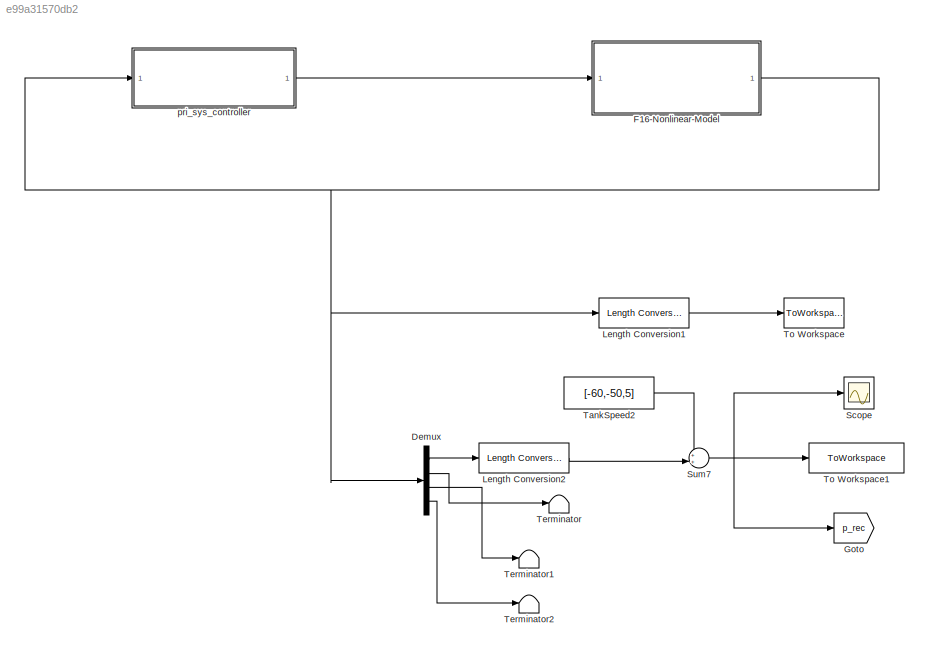
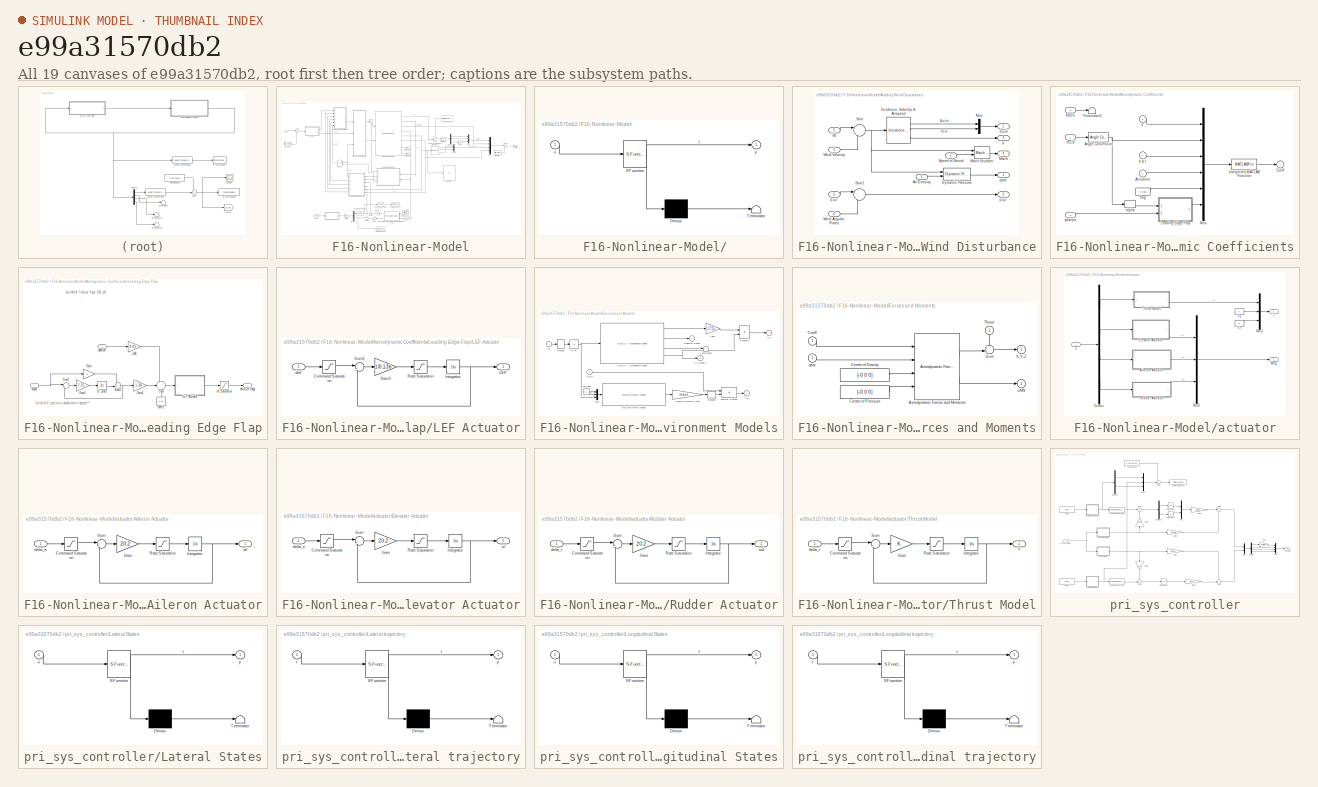
[diagram: thumbnail index - all 19 canvases of the model, root first then tree order]
MODEL slx_e99a31570db2
KIND model
CONFIG AbsTol = auto
CONFIG EnableMultiTasking = off
CONFIG FixedStep = 0.01
CONFIG MaxStep = auto
CONFIG MinStep = auto
CONFIG RelTol = 1e-3
CONFIG SampleTimeConstraint = Unconstrained
CONFIG Solver = VariableStepAuto
CONFIG SolverName = VariableStepAuto
CONFIG StartTime = 0.0
CONFIG StopTime = 200
BLOCK [Demux] Demux
  DisplayOption = bar
  Ports = [1, 4]
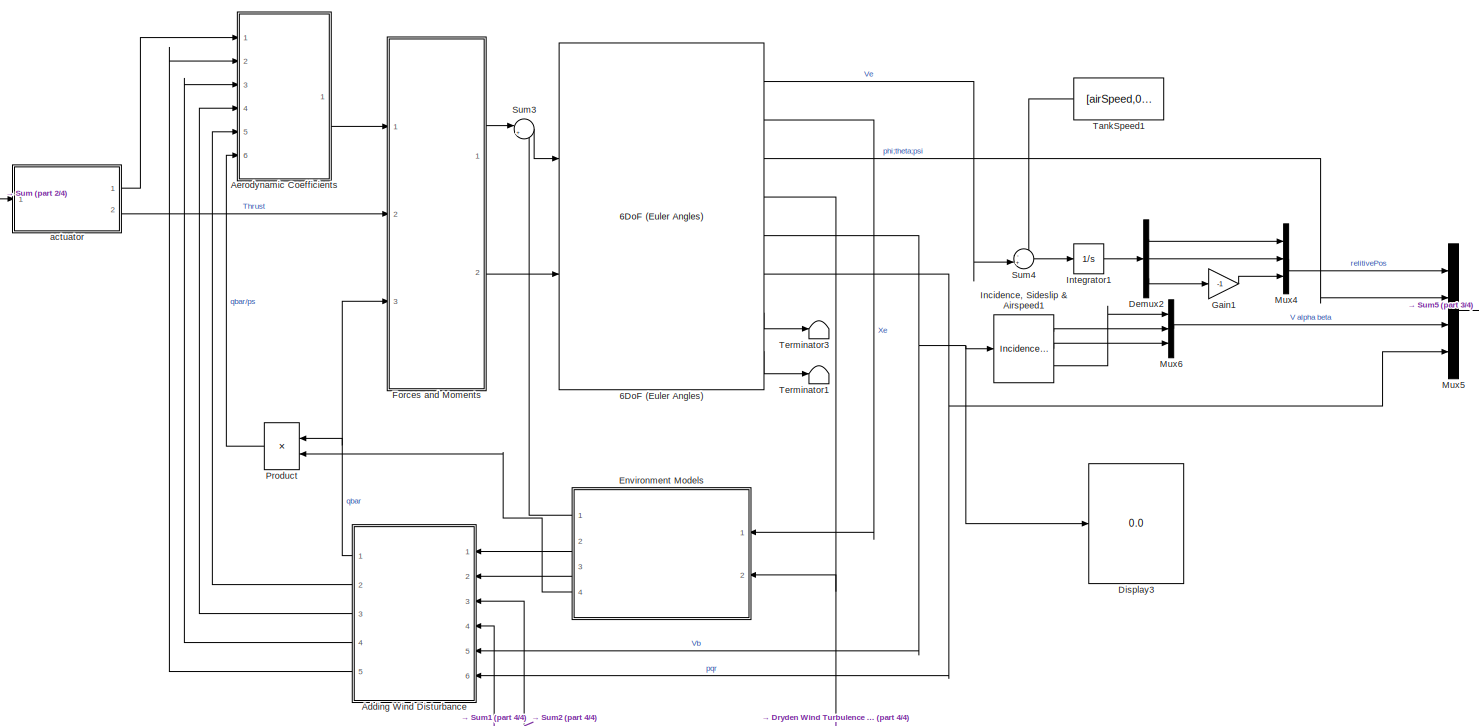
[diagram: F16-Nonlinear-Model - part 1/4, full width, middle band]
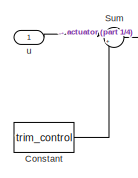
[diagram: F16-Nonlinear-Model - part 2/4, top left region]
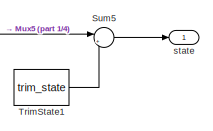
[diagram: F16-Nonlinear-Model - part 3/4, middle right region]
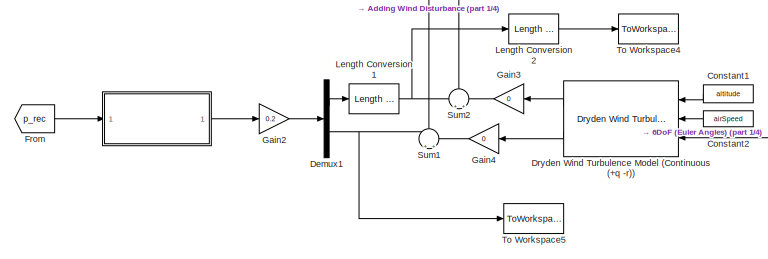
[diagram: F16-Nonlinear-Model - part 4/4, bottom center region]
BLOCK [SubSystem] F16-Nonlinear-Model
  Ports = [1, 1]
  RequestExecContextInheritance = off
  Variant = off
BLOCK [SubSystem] F16-Nonlinear-Model/ 
  ErrorFcn = Stateflow.Translate.translate
  PermitHierarchicalResolution = ExplicitOnly
  Ports = [1, 1]
  RequestExecContextInheritance = off
  SFBlockType = MATLAB Function
  TreatAsAtomicUnit = on
  Variant = off
BLOCK [Demux] F16-Nonlinear-Model/ / Demux 
  Outputs = 1
  Ports = [1, 1]
BLOCK [S-Function] F16-Nonlinear-Model/ / SFunction 
  EnableBusSupport = on
  FunctionName = sf_sfun
  PortCounts = [1 2]
  Ports = [1, 2]
  SFcnIsStateOwnerBlock = off
  SFunctionDeploymentMode = off
  Tag = Stateflow S-Function ADC_Controller_Trajectory_Tracking__Vortex_COM 3
BLOCK [Terminator] F16-Nonlinear-Model/ / Terminator 
BLOCK [Inport] F16-Nonlinear-Model/ /u
  IconDisplay = Port number
BLOCK [Outport] F16-Nonlinear-Model/ /y
  IconDisplay = Port number
BLOCK [Reference] F16-Nonlinear-Model/6DoF (Euler Angles)  REF=aerolibobsolete/6DoF (Euler Angles)
  Ports = [2, 8]
  SourceBlock = aerolibobsolete/6DoF (Euler Angles)
  SourceProductBaseCode = AE
  SourceProductName = Aerospace Blockset
  SourceType = 6DoF EoM (Body Axis)
BLOCK [SubSystem] F16-Nonlinear-Model/Adding Wind Disturbance
  Ports = [6, 5]
  RequestExecContextInheritance = off
  Variant = off
BLOCK [Inport] F16-Nonlinear-Model/Adding Wind Disturbance/Air Density
  IconDisplay = Port number
  Port = 2
BLOCK [Reference] F16-Nonlinear-Model/Adding Wind Disturbance/Dynamic Pressure  REF=aerolibasang/Dynamic Pressure
  Ports = [2, 1]
  SourceBlock = aerolibasang/Dynamic Pressure
  SourceProductBaseCode = AE
  SourceProductName = Aerospace Blockset
  SourceType = Dynamic Pressure
BLOCK [Outport] F16-Nonlinear-Model/Adding Wind Disturbance/Incid
  IconDisplay = Port number
  Port = 5
BLOCK [Reference] F16-Nonlinear-Model/Adding Wind Disturbance/Incidence, Sideslip & Airspeed  REF=aerolibasang/Incidence, Sideslip,
& Airspeed
  Ports = [1, 3]
  SourceBlock = aerolibasang/Incidence, Sideslip,\n& Airspeed
  SourceProductBaseCode = AE
  SourceProductName = Aerospace Blockset
  SourceType = Incidence,Sideslip,&Airspeed
BLOCK [Outport] F16-Nonlinear-Model/Adding Wind Disturbance/Mach
  IconDisplay = Port number
  Port = 4
BLOCK [Reference] F16-Nonlinear-Model/Adding Wind Disturbance/Mach Number  REF=aerolibasang/Mach Number
  Ports = [2, 1]
  SourceBlock = aerolibasang/Mach Number
  SourceProductBaseCode = AE
  SourceProductName = Aerospace Blockset
  SourceType = Mach Number
BLOCK [Mux] F16-Nonlinear-Model/Adding Wind Disturbance/Mux
  DisplayOption = bar
  Inputs = 2
  Ports = [2, 1]
BLOCK [Inport] F16-Nonlinear-Model/Adding Wind Disturbance/Speed of Sound
  IconDisplay = Port number
BLOCK [Sum] F16-Nonlinear-Model/Adding Wind Disturbance/Sum
  IconShape = round
  Inputs = |+-
  Ports = [2, 1]
BLOCK [Sum] F16-Nonlinear-Model/Adding Wind Disturbance/Sum1
  IconShape = round
  Inputs = |++
  Ports = [2, 1]
BLOCK [Outport] F16-Nonlinear-Model/Adding Wind Disturbance/V
  IconDisplay = Port number
  Port = 3
BLOCK [Inport] F16-Nonlinear-Model/Adding Wind Disturbance/Vb
  IconDisplay = Port number
  Port = 5
  PortDimensions = 3
BLOCK [Inport] F16-Nonlinear-Model/Adding Wind Disturbance/Wind Angular Rates
  IconDisplay = Port number
  Port = 4
  PortDimensions = 3
BLOCK [Inport] F16-Nonlinear-Model/Adding Wind Disturbance/Wind Velocity
  IconDisplay = Port number
  Port = 3
  PortDimensions = 3
BLOCK [Inport] F16-Nonlinear-Model/Adding Wind Disturbance/p,q,r
  IconDisplay = Port number
  Port = 6
  PortDimensions = 3
BLOCK [Outport] F16-Nonlinear-Model/Adding Wind Disturbance/p,q,r 
  IconDisplay = Port number
  Port = 2
BLOCK [Outport] F16-Nonlinear-Model/Adding Wind Disturbance/qbar
  IconDisplay = Port number
  InitialOutput = 0
BLOCK [SubSystem] F16-Nonlinear-Model/Aerodynamic Coefficients
  Ports = [6, 1]
  RequestExecContextInheritance = off
  Variant = off
BLOCK [Inport] F16-Nonlinear-Model/Aerodynamic Coefficients/Actuators
  IconDisplay = Port number
BLOCK [Reference] F16-Nonlinear-Model/Aerodynamic Coefficients/Angle Conversion  REF=aerolibconvert2/Angle Conversion
  Ports = [1, 1]
  SourceBlock = aerolibconvert2/Angle Conversion
  SourceProductBaseCode = AE
  SourceProductName = Aerospace Blockset
  SourceType = Angle Conversion
BLOCK [Outport] F16-Nonlinear-Model/Aerodynamic Coefficients/Coeff
  IconDisplay = Port number
  InitialOutput = 0
BLOCK [Inport] F16-Nonlinear-Model/Aerodynamic Coefficients/Incid
  IconDisplay = Port number
  Port = 2
BLOCK [MATLABFcn] F16-Nonlinear-Model/Aerodynamic Coefficients/Interpreted MATLAB Function
  MATLABFcn = F16Coef1
  OutputDimensions = 6
  Ports = [1, 1]
BLOCK [SubSystem] F16-Nonlinear-Model/Aerodynamic Coefficients/Leading Edge Flap
  Ports = [2, 1]
  RequestExecContextInheritance = off
  Variant = off
BLOCK [Gain] F16-Nonlinear-Model/Aerodynamic Coefficients/Leading Edge Flap/Gain
  Gain = 2
BLOCK [Gain] F16-Nonlinear-Model/Aerodynamic Coefficients/Leading Edge Flap/Gain1
  Gain = 7.25
BLOCK [Gain] F16-Nonlinear-Model/Aerodynamic Coefficients/Leading Edge Flap/Gain2
  Gain = 1.38
BLOCK [SubSystem] F16-Nonlinear-Model/Aerodynamic Coefficients/Leading Edge Flap/LEF Actuator
  Ports = [1, 1]
  RequestExecContextInheritance = off
  Variant = off
BLOCK [Saturate] F16-Nonlinear-Model/Aerodynamic Coefficients/Leading Edge Flap/LEF Actuator/Command Saturation
  InputPortMap = u0
  LowerLimit = 0
  Ports = [1, 1]
  UpperLimit = 25
BLOCK [Gain] F16-Nonlinear-Model/Aerodynamic Coefficients/Leading Edge Flap/LEF Actuator/Gain3
  Gain = 1/0.136
BLOCK [Integrator] F16-Nonlinear-Model/Aerodynamic Coefficients/Leading Edge Flap/LEF Actuator/Integrator 
  InitialCondition = dLEF
  LowerSaturationLimit = -21.5
  Ports = [1, 1]
  UpperSaturationLimit = 21.5
BLOCK [Outport] F16-Nonlinear-Model/Aerodynamic Coefficients/Leading Edge Flap/LEF Actuator/LEF
  IconDisplay = Port number
BLOCK [Saturate] F16-Nonlinear-Model/Aerodynamic Coefficients/Leading Edge Flap/LEF Actuator/Rate Saturation
  InputPortMap = u0
  LowerLimit = -25
  Ports = [1, 1]
  UpperLimit = 25
BLOCK [Sum] F16-Nonlinear-Model/Aerodynamic Coefficients/Leading Edge Flap/LEF Actuator/Sum3
  IconShape = round
  Inputs = |+-
  Ports = [2, 1]
BLOCK [Inport] F16-Nonlinear-Model/Aerodynamic Coefficients/Leading Edge Flap/LEF Actuator/dlef
  IconDisplay = Port number
BLOCK [Integrator] F16-Nonlinear-Model/Aerodynamic Coefficients/Leading Edge Flap/LF_state
  InitialCondition = -alpha0
  Ports = [1, 1]
BLOCK [Sum] F16-Nonlinear-Model/Aerodynamic Coefficients/Leading Edge Flap/Sum
  IconShape = round
  Inputs = -|+|+
  Ports = [3, 1]
BLOCK [Sum] F16-Nonlinear-Model/Aerodynamic Coefficients/Leading Edge Flap/Sum1
  IconShape = round
  Inputs = |+-
  Ports = [2, 1]
BLOCK [Sum] F16-Nonlinear-Model/Aerodynamic Coefficients/Leading Edge Flap/Sum2
  IconShape = round
  Inputs = ++|
  Ports = [2, 1]
BLOCK [Inport] F16-Nonlinear-Model/Aerodynamic Coefficients/Leading Edge Flap/alpha
  IconDisplay = Port number
BLOCK [Constant] F16-Nonlinear-Model/Aerodynamic Coefficients/Leading Edge Flap/coeff1
  Value = 1.45
BLOCK [Outport] F16-Nonlinear-Model/Aerodynamic Coefficients/Leading Edge Flap/delta_lef (deg)
  IconDisplay = Port number
BLOCK [Saturate] F16-Nonlinear-Model/Aerodynamic Coefficients/Leading Edge Flap/lef Saturation
  InputPortMap = u0
  LowerLimit = 0
  Ports = [1, 1]
  UpperLimit = 25
BLOCK [Inport] F16-Nonlinear-Model/Aerodynamic Coefficients/Leading Edge Flap/qbar//ps
  IconDisplay = Port number
  Port = 2
BLOCK [Gain] F16-Nonlinear-Model/Aerodynamic Coefficients/Leading Edge Flap/r2d6
  Gain = 9.05
BLOCK [Inport] F16-Nonlinear-Model/Aerodynamic Coefficients/Mach
  IconDisplay = Port number
  Port = 3
BLOCK [Mux] F16-Nonlinear-Model/Aerodynamic Coefficients/Mux
  DisplayOption = bar
  Inputs = 6
  Ports = [6, 1]
BLOCK [Terminator] F16-Nonlinear-Model/Aerodynamic Coefficients/Terminator2
BLOCK [Inport] F16-Nonlinear-Model/Aerodynamic Coefficients/V
  IconDisplay = Port number
  Port = 4
BLOCK [Selector] F16-Nonlinear-Model/Aerodynamic Coefficients/alpha
  IndexOptions = Index vector (dialog)
  Indices = 1
  InputPortWidth = 2
  OutputSizes = 1
  Ports = [1, 1]
BLOCK [Constant] F16-Nonlinear-Model/Aerodynamic Coefficients/flag
  Value = fi_flag
BLOCK [Inport] F16-Nonlinear-Model/Aerodynamic Coefficients/p,q,r
  IconDisplay = Port number
  Port = 5
BLOCK [Inport] F16-Nonlinear-Model/Aerodynamic Coefficients/qbar//ps
  IconDisplay = Port number
  Port = 6
BLOCK [Constant] F16-Nonlinear-Model/Constant
  Value = trim_control
BLOCK [Constant] F16-Nonlinear-Model/Constant1
  Value = altitude
BLOCK [Constant] F16-Nonlinear-Model/Constant2
  Value = airSpeed
BLOCK [Demux] F16-Nonlinear-Model/Demux1
  DisplayOption = bar
  Outputs = 2
  Ports = [1, 2]
BLOCK [Demux] F16-Nonlinear-Model/Demux2
  DisplayOption = bar
  Outputs = 3
  Ports = [1, 3]
BLOCK [Display] F16-Nonlinear-Model/Display3
  Decimation = 1
  Ports = [1]
BLOCK [Reference] F16-Nonlinear-Model/Dryden Wind Turbulence Model (Continuous (+q -r))  REF=aerolibwind2/Dryden Wind Turbulence Model 
(Continuous (+q -r))
  Ports = [3, 2]
  SourceBlock = aerolibwind2/Dryden Wind Turbulence Model \n(Continuous (+q -r))
  SourceProductBaseCode = AE
  SourceProductName = Aerospace Blockset
  SourceType = Wind Turbulence Model
BLOCK [SubSystem] F16-Nonlinear-Model/Environment Models
  Ports = [2, 4]
  RequestExecContextInheritance = off
  Variant = off
BLOCK [Outport] F16-Nonlinear-Model/Environment Models/Air Density
  IconDisplay = Port number
  InitialOutput = 0
  Port = 3
BLOCK [Reference] F16-Nonlinear-Model/Environment Models/COESA Atmosphere Model  REF=aerolibatmos2/COESA Atmosphere Model
  Ports = [1, 4]
  SourceBlock = aerolibatmos2/COESA Atmosphere Model
  SourceProductBaseCode = AE
  SourceProductName = Aerospace Blockset
  SourceType = Atmosphere Model
BLOCK [Inport] F16-Nonlinear-Model/Environment Models/DCM
  IconDisplay = Port number
  Port = 2
BLOCK [Outport] F16-Nonlinear-Model/Environment Models/Fg
  IconDisplay = Port number
  InitialOutput = 0
BLOCK [Gain] F16-Nonlinear-Model/Environment Models/Gravity in Earth Axes
  Gain = mass
BLOCK [Selector] F16-Nonlinear-Model/Environment Models/Height
  IndexOptions = Index vector (dialog)
  Indices = [3]
  InputPortWidth = 3
  OutputSizes = 1
  Ports = [1, 1]
BLOCK [Product] F16-Nonlinear-Model/Environment Models/Inertial to Body
  Multiplication = Matrix(*)
  Ports = [2, 1]
  RndMeth = Floor
BLOCK [Constant] F16-Nonlinear-Model/Environment Models/Latitude
  Value = 0
BLOCK [Mux] F16-Nonlinear-Model/Environment Models/Mux
  DisplayOption = bar
  Inputs = 3
  Ports = [3, 1]
BLOCK [Outport] F16-Nonlinear-Model/Environment Models/PS
  IconDisplay = Port number
  Port = 4
BLOCK [Product] F16-Nonlinear-Model/Environment Models/Product6
  Inputs = **
  Ports = [2, 1]
  RndMeth = Floor
BLOCK [Reshape] F16-Nonlinear-Model/Environment Models/Reshape
  Ports = [1, 1]
BLOCK [Outport] F16-Nonlinear-Model/Environment Models/Speed of Sound
  IconDisplay = Port number
  InitialOutput = 0
  Port = 2
BLOCK [Terminator] F16-Nonlinear-Model/Environment Models/Terminator
BLOCK [Reference] F16-Nonlinear-Model/Environment Models/WGS84 Gravity Model   REF=aerolibobsolete/WGS84 Gravity Model 
  Ports = [1, 1]
  SourceBlock = aerolibobsolete/WGS84 Gravity Model
  SourceProductBaseCode = AE
  SourceProductName = Aerospace Blockset
  SourceType = WGS84 Gravity Model 3D
BLOCK [Inport] F16-Nonlinear-Model/Environment Models/Xe
  IconDisplay = Port number
  PortDimensions = 3
BLOCK [Gain] F16-Nonlinear-Model/Environment Models/r2d5
  Gain = 1715
BLOCK [Abs] F16-Nonlinear-Model/Environment Models/z-->h
BLOCK [SubSystem] F16-Nonlinear-Model/Forces and Moments
  Ports = [3, 2]
  RequestExecContextInheritance = off
  Variant = off
BLOCK [Reference] F16-Nonlinear-Model/Forces and Moments/Aerodynamic Forces and Moments   REF=aerolibadyn/Aerodynamic
Forces and Moments 
  Ports = [4, 2]
  SourceBlock = aerolibadyn/Aerodynamic\nForces and Moments
  SourceProductBaseCode = AE
  SourceProductName = Aerospace Blockset
  SourceType = Aerodynamic Forces and Moments
BLOCK [Constant] F16-Nonlinear-Model/Forces and Moments/Center of Gravity
  Value = [-0 0 0]
BLOCK [Constant] F16-Nonlinear-Model/Forces and Moments/Center of Pressure
  Value = [-0 0 0]
BLOCK [Inport] F16-Nonlinear-Model/Forces and Moments/Coeff
  IconDisplay = Port number
BLOCK [Outport] F16-Nonlinear-Model/Forces and Moments/LMN
  IconDisplay = Port number
  InitialOutput = 0
  Port = 2
BLOCK [Sum] F16-Nonlinear-Model/Forces and Moments/Sum
  IconShape = round
  Inputs = ++|
  Ports = [2, 1]
BLOCK [Inport] F16-Nonlinear-Model/Forces and Moments/Thrust
  IconDisplay = Port number
  Port = 2
BLOCK [Outport] F16-Nonlinear-Model/Forces and Moments/X,Y,Z
  IconDisplay = Port number
  InitialOutput = 0
BLOCK [Inport] F16-Nonlinear-Model/Forces and Moments/qbar
  IconDisplay = Port number
  Port = 3
BLOCK [From] F16-Nonlinear-Model/From
  GotoTag = p_rec
  TagVisibility = global
BLOCK [Gain] F16-Nonlinear-Model/Gain1
  Gain = -1
  OutDataTypeStr = Inherit: Inherit via internal rule
  ParamDataTypeStr = Inherit: Inherit via internal rule
  SaturateOnIntegerOverflow = off
BLOCK [Gain] F16-Nonlinear-Model/Gain2
  Gain = 0.2
  OutDataTypeStr = Inherit: Inherit via internal rule
  ParamDataTypeStr = Inherit: Inherit via internal rule
  SaturateOnIntegerOverflow = off
BLOCK [Gain] F16-Nonlinear-Model/Gain3
  Gain = 0
  OutDataTypeStr = Inherit: Inherit via internal rule
  ParamDataTypeStr = Inherit: Inherit via internal rule
  SaturateOnIntegerOverflow = off
BLOCK [Gain] F16-Nonlinear-Model/Gain4
  Gain = 0
  OutDataTypeStr = Inherit: Inherit via internal rule
  ParamDataTypeStr = Inherit: Inherit via internal rule
  SaturateOnIntegerOverflow = off
BLOCK [Reference] F16-Nonlinear-Model/Incidence, Sideslip & Airspeed1  REF=aerolibasang/Incidence, Sideslip,
& Airspeed
  Ports = [1, 3]
  SourceBlock = aerolibasang/Incidence, Sideslip,\n& Airspeed
  SourceProductBaseCode = AE
  SourceProductName = Aerospace Blockset
  SourceType = Incidence,Sideslip,&Airspeed
BLOCK [Integrator] F16-Nonlinear-Model/Integrator1
  Ports = [1, 1]
BLOCK [Reference] F16-Nonlinear-Model/Length Conversion1  REF=aerolibconvert2/Length Conversion
  Ports = [1, 1]
  SourceBlock = aerolibconvert2/Length Conversion
  SourceProductBaseCode = AE
  SourceProductName = Aerospace Blockset
  SourceType = Length Conversion
BLOCK [Reference] F16-Nonlinear-Model/Length Conversion2  REF=aerolibconvert2/Length Conversion
  Ports = [1, 1]
  SourceBlock = aerolibconvert2/Length Conversion
  SourceProductBaseCode = AE
  SourceProductName = Aerospace Blockset
  SourceType = Length Conversion
BLOCK [Mux] F16-Nonlinear-Model/Mux4
  DisplayOption = bar
  Inputs = 3
  Ports = [3, 1]
BLOCK [Mux] F16-Nonlinear-Model/Mux5
  DisplayOption = bar
  Ports = [4, 1]
BLOCK [Mux] F16-Nonlinear-Model/Mux6
  DisplayOption = bar
  Inputs = 3
  Ports = [3, 1]
BLOCK [Product] F16-Nonlinear-Model/Product
  Inputs = */
  Ports = [2, 1]
  RndMeth = Floor
BLOCK [Sum] F16-Nonlinear-Model/Sum
  IconShape = round
  InputSameDT = off
  Inputs = |++
  OutDataTypeStr = Inherit: Inherit via internal rule
  Ports = [2, 1]
  SaturateOnIntegerOverflow = off
BLOCK [Sum] F16-Nonlinear-Model/Sum1
  IconShape = round
  InputSameDT = off
  Inputs = +|+
  OutDataTypeStr = Inherit: Inherit via internal rule
  Ports = [2, 1]
  SaturateOnIntegerOverflow = off
BLOCK [Sum] F16-Nonlinear-Model/Sum2
  IconShape = round
  InputSameDT = off
  Inputs = +|+
  OutDataTypeStr = Inherit: Inherit via internal rule
  Ports = [2, 1]
  SaturateOnIntegerOverflow = off
BLOCK [Sum] F16-Nonlinear-Model/Sum3
  IconShape = round
  Inputs = |++
  Ports = [2, 1]
BLOCK [Sum] F16-Nonlinear-Model/Sum4
  IconShape = round
  InputSameDT = off
  Inputs = -+|
  OutDataTypeStr = Inherit: Inherit via internal rule
  Ports = [2, 1]
  SaturateOnIntegerOverflow = off
BLOCK [Sum] F16-Nonlinear-Model/Sum5
  IconShape = round
  InputSameDT = off
  Inputs = |+-
  OutDataTypeStr = Inherit: Inherit via internal rule
  Ports = [2, 1]
  SaturateOnIntegerOverflow = off
BLOCK [Constant] F16-Nonlinear-Model/TankSpeed1
  Value = [airSpeed,0,0]
BLOCK [Terminator] F16-Nonlinear-Model/Terminator1
BLOCK [Terminator] F16-Nonlinear-Model/Terminator3
BLOCK [ToWorkspace] F16-Nonlinear-Model/To Workspace4
  FixptAsFi = on
  MaxDataPoints = inf
  Ports = [1]
  SampleTime = -1
  Save2DSignal = 3-D array (concatenate along third dimension)
  SaveFormat = Structure With Time
  VariableName = V_wind
BLOCK [ToWorkspace] F16-Nonlinear-Model/To Workspace5
  FixptAsFi = on
  MaxDataPoints = inf
  Ports = [1]
  SampleTime = -1
  Save2DSignal = 3-D array (concatenate along third dimension)
  SaveFormat = Structure With Time
  VariableName = W_wind
BLOCK [Constant] F16-Nonlinear-Model/TrimState1
  Value = trim_state
BLOCK [SubSystem] F16-Nonlinear-Model/actuator
  Ports = [1, 2]
  RequestExecContextInheritance = off
  Variant = off
BLOCK [SubSystem] F16-Nonlinear-Model/actuator/Aileron Actuator
  Ports = [1, 1]
  RequestExecContextInheritance = off
  Variant = off
BLOCK [Saturate] F16-Nonlinear-Model/actuator/Aileron Actuator/Command Saturation
  InputPortMap = u0
  LowerLimit = -21.5
  Ports = [1, 1]
  UpperLimit = 21.5
BLOCK [Gain] F16-Nonlinear-Model/actuator/Aileron Actuator/Gain
  Gain = 20.2
BLOCK [Integrator] F16-Nonlinear-Model/actuator/Aileron Actuator/Integrator 
  InitialCondition = trim_ail
  LowerSaturationLimit = -21.5
  Ports = [1, 1]
  UpperSaturationLimit = 21.5
BLOCK [Saturate] F16-Nonlinear-Model/actuator/Aileron Actuator/Rate Saturation
  InputPortMap = u0
  LowerLimit = -80
  Ports = [1, 1]
  UpperLimit = 80
BLOCK [Sum] F16-Nonlinear-Model/actuator/Aileron Actuator/Sum
  IconShape = round
  Inputs = |+-
  Ports = [2, 1]
BLOCK [Outport] F16-Nonlinear-Model/actuator/Aileron Actuator/ail
  IconDisplay = Port number
BLOCK [Inport] F16-Nonlinear-Model/actuator/Aileron Actuator/delta_a
  IconDisplay = Port number
BLOCK [Outport] F16-Nonlinear-Model/actuator/Ang
  IconDisplay = Port number
BLOCK [Demux] F16-Nonlinear-Model/actuator/Demux
  DisplayOption = bar
  Ports = [1, 4]
BLOCK [SubSystem] F16-Nonlinear-Model/actuator/Elevator Actuator
  Ports = [1, 1]
  RequestExecContextInheritance = off
  Variant = off
BLOCK [Saturate] F16-Nonlinear-Model/actuator/Elevator Actuator/Command Saturation
  InputPortMap = u0
  LowerLimit = -25
  Ports = [1, 1]
  UpperLimit = 25
BLOCK [Gain] F16-Nonlinear-Model/actuator/Elevator Actuator/Gain
  Gain = 20.2
BLOCK [Integrator] F16-Nonlinear-Model/actuator/Elevator Actuator/Integrator 
  InitialCondition = trim_ele
  LowerSaturationLimit = -25
  Ports = [1, 1]
  UpperSaturationLimit = 25
BLOCK [Saturate] F16-Nonlinear-Model/actuator/Elevator Actuator/Rate Saturation
  InputPortMap = u0
  LowerLimit = -60
  Ports = [1, 1]
  UpperLimit = 60
BLOCK [Sum] F16-Nonlinear-Model/actuator/Elevator Actuator/Sum
  IconShape = round
  Inputs = |+-
  Ports = [2, 1]
BLOCK [Inport] F16-Nonlinear-Model/actuator/Elevator Actuator/delta_e
  IconDisplay = Port number
BLOCK [Outport] F16-Nonlinear-Model/actuator/Elevator Actuator/el
  IconDisplay = Port number
BLOCK [Mux] F16-Nonlinear-Model/actuator/Mux1
  DisplayOption = bar
  Inputs = 3
  Ports = [3, 1]
BLOCK [Mux] F16-Nonlinear-Model/actuator/Mux2
  DisplayOption = bar
  Inputs = 3
  Ports = [3, 1]
BLOCK [SubSystem] F16-Nonlinear-Model/actuator/Rudder Actuator
  Ports = [1, 1]
  RequestExecContextInheritance = off
  Variant = off
BLOCK [Saturate] F16-Nonlinear-Model/actuator/Rudder Actuator/Command Saturation
  InputPortMap = u0
  LowerLimit = -30
  Ports = [1, 1]
  UpperLimit = 30
BLOCK [Gain] F16-Nonlinear-Model/actuator/Rudder Actuator/Gain
  Gain = 20.2
BLOCK [Integrator] F16-Nonlinear-Model/actuator/Rudder Actuator/Integrator 
  InitialCondition = trim_rud
  LowerSaturationLimit = -30
  Ports = [1, 1]
  UpperSaturationLimit = 30
BLOCK [Saturate] F16-Nonlinear-Model/actuator/Rudder Actuator/Rate Saturation
  InputPortMap = u0
  LowerLimit = -120
  Ports = [1, 1]
  UpperLimit = 120
BLOCK [Sum] F16-Nonlinear-Model/actuator/Rudder Actuator/Sum
  IconShape = round
  Inputs = |+-
  Ports = [2, 1]
BLOCK [Inport] F16-Nonlinear-Model/actuator/Rudder Actuator/delta_r
  IconDisplay = Port number
BLOCK [Outport] F16-Nonlinear-Model/actuator/Rudder Actuator/rud
  IconDisplay = Port number
BLOCK [Outport] F16-Nonlinear-Model/actuator/T
  IconDisplay = Port number
  Port = 2
BLOCK [SubSystem] F16-Nonlinear-Model/actuator/Thrust Model
  Ports = [1, 1]
  RequestExecContextInheritance = off
  Variant = off
BLOCK [Saturate] F16-Nonlinear-Model/actuator/Thrust Model/Command Saturation
  InputPortMap = u0
  LowerLimit = 1000
  Ports = [1, 1]
  UpperLimit = 19000
BLOCK [Gain] F16-Nonlinear-Model/actuator/Thrust Model/Gain
BLOCK [Integrator] F16-Nonlinear-Model/actuator/Thrust Model/Integrator 
  InitialCondition = trim_thrust
  LowerSaturationLimit = -30
  Ports = [1, 1]
  UpperSaturationLimit = 30
BLOCK [Saturate] F16-Nonlinear-Model/actuator/Thrust Model/Rate Saturation
  InputPortMap = u0
  LowerLimit = -10000
  Ports = [1, 1]
  UpperLimit = 10000
BLOCK [Sum] F16-Nonlinear-Model/actuator/Thrust Model/Sum
  IconShape = round
  Inputs = |+-
  Ports = [2, 1]
BLOCK [Outport] F16-Nonlinear-Model/actuator/Thrust Model/T
  IconDisplay = Port number
BLOCK [Inport] F16-Nonlinear-Model/actuator/Thrust Model/delta_t
  IconDisplay = Port number
BLOCK [Constant] F16-Nonlinear-Model/actuator/Ty
  Value = 0
BLOCK [Constant] F16-Nonlinear-Model/actuator/Tz
  Value = 0
BLOCK [Inport] F16-Nonlinear-Model/actuator/u
  IconDisplay = Port number
BLOCK [Outport] F16-Nonlinear-Model/state
  IconDisplay = Port number
BLOCK [Inport] F16-Nonlinear-Model/u
  IconDisplay = Port number
BLOCK [Goto] Goto
  GotoTag = p_rec
  TagVisibility = global
BLOCK [Reference] Length Conversion1  REF=aerolibconvert2/Length Conversion
  Ports = [1, 1]
  SourceBlock = aerolibconvert2/Length Conversion
  SourceProductBaseCode = AE
  SourceProductName = Aerospace Blockset
  SourceType = Length Conversion
BLOCK [Reference] Length Conversion2  REF=aerolibconvert2/Length Conversion
  Ports = [1, 1]
  SourceBlock = aerolibconvert2/Length Conversion
  SourceProductBaseCode = AE
  SourceProductName = Aerospace Blockset
  SourceType = Length Conversion
BLOCK [Scope] Scope
  NumInputPorts = 1
  Ports = [1]
  ScopeSpecificationString = Simulink.scopes.TimeScopeBlockCfg('CurrentConfiguration', extmgr.ConfigurationSet(extmgr.Configuration('Core','General UI',true),extmgr.Configuration('Core','Source UI',true),extmgr.Configuration('Sources','WiredSimulink',true),extmgr.Configuration('Visuals','Time Domain',true,'SerializedDisplays',{struct('MinYLimReal','-68.21868','MaxYLimReal','13.62324','YLabelReal','','MinYLimMag','0.00000','Ma...<+1381ch>
BLOCK [Sum] Sum7
  IconShape = round
  InputSameDT = off
  Inputs = ++|
  OutDataTypeStr = Inherit: Inherit via internal rule
  Ports = [2, 1]
  SaturateOnIntegerOverflow = off
BLOCK [Constant] TankSpeed2
  Value = [-60,-50,5]
BLOCK [Terminator] Terminator
BLOCK [Terminator] Terminator1
BLOCK [Terminator] Terminator2
BLOCK [ToWorkspace] To Workspace
  FixptAsFi = on
  MaxDataPoints = inf
  Ports = [1]
  SampleTime = -1
  Save2DSignal = 3-D array (concatenate along third dimension)
  SaveFormat = Structure With Time
  VariableName = in_mass
BLOCK [ToWorkspace] To Workspace1
  FixptAsFi = on
  MaxDataPoints = inf
  Ports = [1]
  SampleTime = -1
  Save2DSignal = 3-D array (concatenate along third dimension)
  SaveFormat = Structure With Time
  VariableName = actual_trajectory
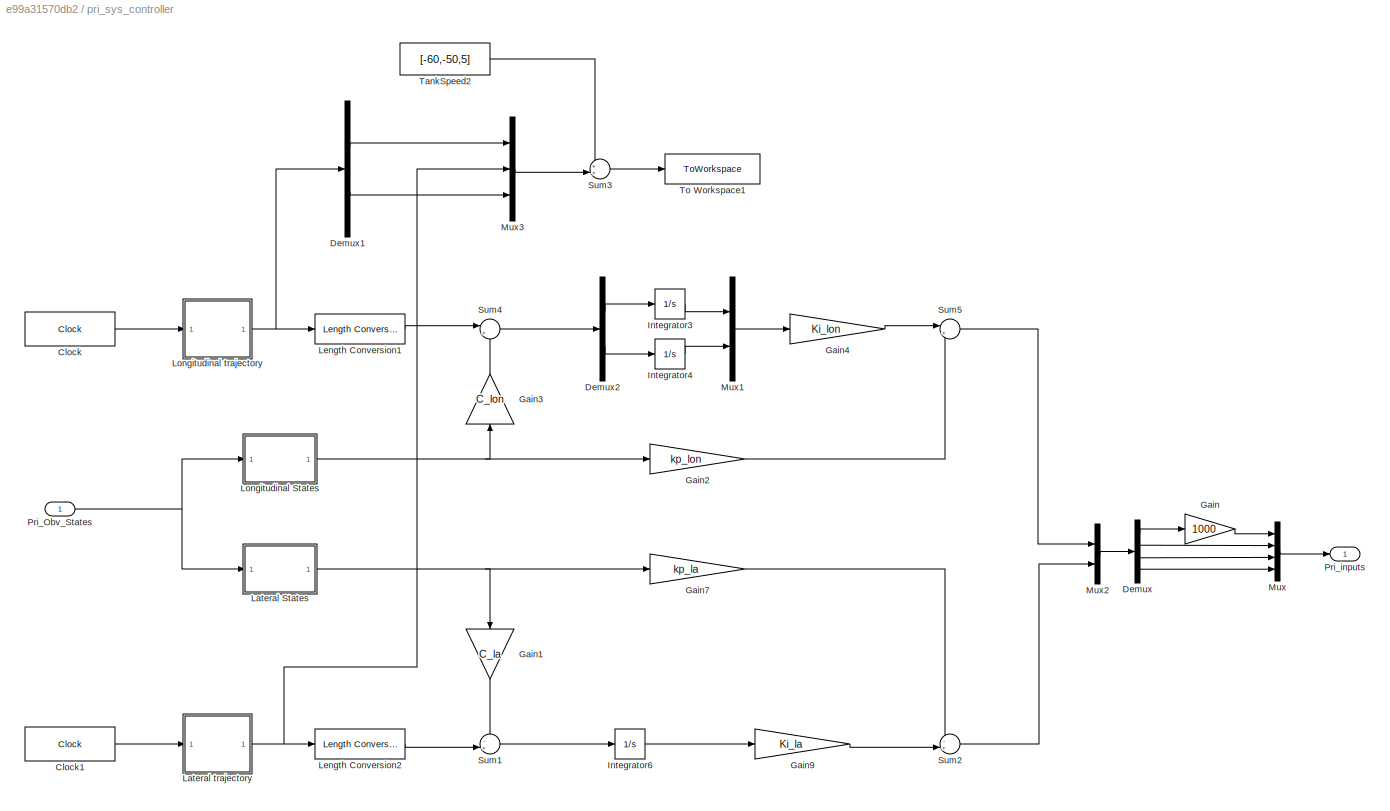
BLOCK [SubSystem] pri_sys_controller
  Ports = [1, 1]
  RequestExecContextInheritance = off
  Variant = off
BLOCK [Clock] pri_sys_controller/Clock
  Decimation = 50
  DisplayTime = on
BLOCK [Clock] pri_sys_controller/Clock1
  Decimation = 50
  DisplayTime = on
BLOCK [Demux] pri_sys_controller/Demux
  DisplayOption = bar
  Ports = [1, 4]
BLOCK [Demux] pri_sys_controller/Demux1
  DisplayOption = bar
  Outputs = 2
  Ports = [1, 2]
BLOCK [Demux] pri_sys_controller/Demux2
  DisplayOption = bar
  Outputs = 2
  Ports = [1, 2]
BLOCK [Gain] pri_sys_controller/Gain
  Gain = 1000
  OutDataTypeStr = Inherit: Inherit via internal rule
  ParamDataTypeStr = Inherit: Inherit via internal rule
  SaturateOnIntegerOverflow = off
BLOCK [Gain] pri_sys_controller/Gain1
  Gain = C_la
  Multiplication = Matrix(K*u) (u vector)
  OutDataTypeStr = Inherit: Inherit via internal rule
  ParamDataTypeStr = Inherit: Inherit via internal rule
  SaturateOnIntegerOverflow = off
BLOCK [Gain] pri_sys_controller/Gain2
  Gain = kp_lon
  Multiplication = Matrix(K*u) (u vector)
  OutDataTypeStr = Inherit: Inherit via internal rule
  ParamDataTypeStr = Inherit: Inherit via internal rule
  SaturateOnIntegerOverflow = off
BLOCK [Gain] pri_sys_controller/Gain3
  Gain = C_lon
  Multiplication = Matrix(K*u) (u vector)
  OutDataTypeStr = Inherit: Inherit via internal rule
  ParamDataTypeStr = Inherit: Inherit via internal rule
  SaturateOnIntegerOverflow = off
BLOCK [Gain] pri_sys_controller/Gain4
  Gain = Ki_lon
  Multiplication = Matrix(K*u) (u vector)
  OutDataTypeStr = Inherit: Inherit via internal rule
  ParamDataTypeStr = Inherit: Inherit via internal rule
  SaturateOnIntegerOverflow = off
BLOCK [Gain] pri_sys_controller/Gain7
  Gain = kp_la
  Multiplication = Matrix(K*u) (u vector)
  OutDataTypeStr = Inherit: Inherit via internal rule
  ParamDataTypeStr = Inherit: Inherit via internal rule
  SaturateOnIntegerOverflow = off
BLOCK [Gain] pri_sys_controller/Gain9
  Gain = Ki_la
  Multiplication = Matrix(K*u) (u vector)
  OutDataTypeStr = Inherit: Inherit via internal rule
  ParamDataTypeStr = Inherit: Inherit via internal rule
  SaturateOnIntegerOverflow = off
BLOCK [Integrator] pri_sys_controller/Integrator3
  Ports = [1, 1]
BLOCK [Integrator] pri_sys_controller/Integrator4
  Ports = [1, 1]
BLOCK [Integrator] pri_sys_controller/Integrator6
  Ports = [1, 1]
BLOCK [SubSystem] pri_sys_controller/Lateral States
  ErrorFcn = Stateflow.Translate.translate
  PermitHierarchicalResolution = ExplicitOnly
  Ports = [1, 1]
  RequestExecContextInheritance = off
  SFBlockType = MATLAB Function
  TreatAsAtomicUnit = on
  Variant = off
BLOCK [Demux] pri_sys_controller/Lateral States/ Demux 
  Outputs = 1
  Ports = [1, 1]
BLOCK [S-Function] pri_sys_controller/Lateral States/ SFunction 
  EnableBusSupport = on
  FunctionName = sf_sfun
  PortCounts = [1 2]
  Ports = [1, 2]
  SFcnIsStateOwnerBlock = off
  SFunctionDeploymentMode = off
  Tag = Stateflow S-Function ADC_Controller_Trajectory_Tracking__Vortex_COM 12
BLOCK [Terminator] pri_sys_controller/Lateral States/ Terminator 
BLOCK [Inport] pri_sys_controller/Lateral States/u
  IconDisplay = Port number
BLOCK [Outport] pri_sys_controller/Lateral States/y
  IconDisplay = Port number
BLOCK [SubSystem] pri_sys_controller/Lateral trajectory
  ErrorFcn = Stateflow.Translate.translate
  PermitHierarchicalResolution = ExplicitOnly
  Ports = [1, 1]
  RequestExecContextInheritance = off
  SFBlockType = MATLAB Function
  TreatAsAtomicUnit = on
  Variant = off
BLOCK [Demux] pri_sys_controller/Lateral trajectory/ Demux 
  Outputs = 1
  Ports = [1, 1]
BLOCK [S-Function] pri_sys_controller/Lateral trajectory/ SFunction 
  EnableBusSupport = on
  FunctionName = sf_sfun
  PortCounts = [1 2]
  Ports = [1, 2]
  SFcnIsStateOwnerBlock = off
  SFunctionDeploymentMode = off
  Tag = Stateflow S-Function ADC_Controller_Trajectory_Tracking__Vortex_COM 8
BLOCK [Terminator] pri_sys_controller/Lateral trajectory/ Terminator 
BLOCK [Inport] pri_sys_controller/Lateral trajectory/t
  IconDisplay = Port number
BLOCK [Outport] pri_sys_controller/Lateral trajectory/y
  IconDisplay = Port number
BLOCK [Reference] pri_sys_controller/Length Conversion1  REF=aerolibconvert2/Length Conversion
  Ports = [1, 1]
  SourceBlock = aerolibconvert2/Length Conversion
  SourceProductBaseCode = AE
  SourceProductName = Aerospace Blockset
  SourceType = Length Conversion
BLOCK [Reference] pri_sys_controller/Length Conversion2  REF=aerolibconvert2/Length Conversion
  Ports = [1, 1]
  SourceBlock = aerolibconvert2/Length Conversion
  SourceProductBaseCode = AE
  SourceProductName = Aerospace Blockset
  SourceType = Length Conversion
BLOCK [SubSystem] pri_sys_controller/Longitudinal States
  ErrorFcn = Stateflow.Translate.translate
  PermitHierarchicalResolution = ExplicitOnly
  Ports = [1, 1]
  RequestExecContextInheritance = off
  SFBlockType = MATLAB Function
  TreatAsAtomicUnit = on
  Variant = off
BLOCK [Demux] pri_sys_controller/Longitudinal States/ Demux 
  Outputs = 1
  Ports = [1, 1]
BLOCK [S-Function] pri_sys_controller/Longitudinal States/ SFunction 
  EnableBusSupport = on
  FunctionName = sf_sfun
  PortCounts = [1 2]
  Ports = [1, 2]
  SFcnIsStateOwnerBlock = off
  SFunctionDeploymentMode = off
  Tag = Stateflow S-Function ADC_Controller_Trajectory_Tracking__Vortex_COM 11
BLOCK [Terminator] pri_sys_controller/Longitudinal States/ Terminator 
BLOCK [Inport] pri_sys_controller/Longitudinal States/u
  IconDisplay = Port number
BLOCK [Outport] pri_sys_controller/Longitudinal States/y
  IconDisplay = Port number
BLOCK [SubSystem] pri_sys_controller/Longitudinal trajectory
  ErrorFcn = Stateflow.Translate.translate
  PermitHierarchicalResolution = ExplicitOnly
  Ports = [1, 1]
  RequestExecContextInheritance = off
  SFBlockType = MATLAB Function
  TreatAsAtomicUnit = on
  Variant = off
BLOCK [Demux] pri_sys_controller/Longitudinal trajectory/ Demux 
  Outputs = 1
  Ports = [1, 1]
BLOCK [S-Function] pri_sys_controller/Longitudinal trajectory/ SFunction 
  EnableBusSupport = on
  FunctionName = sf_sfun
  PortCounts = [1 2]
  Ports = [1, 2]
  SFcnIsStateOwnerBlock = off
  SFunctionDeploymentMode = off
  Tag = Stateflow S-Function ADC_Controller_Trajectory_Tracking__Vortex_COM 1
BLOCK [Terminator] pri_sys_controller/Longitudinal trajectory/ Terminator 
BLOCK [Inport] pri_sys_controller/Longitudinal trajectory/t
  IconDisplay = Port number
BLOCK [Outport] pri_sys_controller/Longitudinal trajectory/y
  IconDisplay = Port number
BLOCK [Mux] pri_sys_controller/Mux
  DisplayOption = bar
  Ports = [4, 1]
BLOCK [Mux] pri_sys_controller/Mux1
  DisplayOption = bar
  Inputs = 2
  Ports = [2, 1]
BLOCK [Mux] pri_sys_controller/Mux2
  DisplayOption = bar
  Inputs = 2
  Ports = [2, 1]
BLOCK [Mux] pri_sys_controller/Mux3
  DisplayOption = bar
  Inputs = 3
  Ports = [3, 1]
BLOCK [Inport] pri_sys_controller/Pri_Obv_States
  IconDisplay = Port number
BLOCK [Outport] pri_sys_controller/Pri_inputs
  IconDisplay = Port number
BLOCK [Sum] pri_sys_controller/Sum1
  IconShape = round
  InputSameDT = off
  Inputs = -+|
  OutDataTypeStr = Inherit: Inherit via internal rule
  Ports = [2, 1]
  SaturateOnIntegerOverflow = off
BLOCK [Sum] pri_sys_controller/Sum2
  IconShape = round
  InputSameDT = off
  Inputs = -+|
  OutDataTypeStr = Inherit: Inherit via internal rule
  Ports = [2, 1]
  SaturateOnIntegerOverflow = off
BLOCK [Sum] pri_sys_controller/Sum3
  IconShape = round
  InputSameDT = off
  Inputs = ++|
  OutDataTypeStr = Inherit: Inherit via internal rule
  Ports = [2, 1]
  SaturateOnIntegerOverflow = off
BLOCK [Sum] pri_sys_controller/Sum4
  IconShape = round
  InputSameDT = off
  Inputs = |+-
  OutDataTypeStr = Inherit: Inherit via internal rule
  Ports = [2, 1]
  SaturateOnIntegerOverflow = off
BLOCK [Sum] pri_sys_controller/Sum5
  IconShape = round
  InputSameDT = off
  Inputs = |+-
  OutDataTypeStr = Inherit: Inherit via internal rule
  Ports = [2, 1]
  SaturateOnIntegerOverflow = off
BLOCK [Constant] pri_sys_controller/TankSpeed2
  Value = [-60,-50,5]
BLOCK [ToWorkspace] pri_sys_controller/To Workspace1
  FixptAsFi = on
  MaxDataPoints = inf
  Ports = [1]
  SampleTime = -1
  Save2DSignal = 3-D array (concatenate along third dimension)
  SaveFormat = Structure With Time
  VariableName = reference_trajectory
ANNOTATION F16-Nonlinear-Model/Aerodynamic Coefficients/Leading Edge Flap: Initialize LF_state with -alpha0 value in degrees!!!!
ANNOTATION F16-Nonlinear-Model/Aerodynamic Coefficients/Leading Edge Flap: see NASA Technical Paper 1538, p34
LINE Demux:1 -> Length Conversion2:1
LINE Demux:2 -> Terminator:1
LINE Demux:3 -> Terminator1:1
LINE Demux:4 -> Terminator2:1
LINE F16-Nonlinear-Model/ :1 -> F16-Nonlinear-Model/Gain2:1
LINE F16-Nonlinear-Model/6DoF (Euler Angles):1 -> F16-Nonlinear-Model/Sum4:2
LINE F16-Nonlinear-Model/6DoF (Euler Angles):2 -> F16-Nonlinear-Model/Environment Models:1
LINE F16-Nonlinear-Model/6DoF (Euler Angles):3 -> F16-Nonlinear-Model/Mux5:2
NET F16-Nonlinear-Model/6DoF (Euler Angles):4 -> F16-Nonlinear-Model/Dryden Wind Turbulence Model (Continuous (+q -r)):3, F16-Nonlinear-Model/Environment Models:2
NET F16-Nonlinear-Model/6DoF (Euler Angles):5 -> F16-Nonlinear-Model/Adding Wind Disturbance:5, F16-Nonlinear-Model/Display3:1, F16-Nonlinear-Model/Incidence, Sideslip & Airspeed1:1
NET F16-Nonlinear-Model/6DoF (Euler Angles):6 -> F16-Nonlinear-Model/Adding Wind Disturbance:6, F16-Nonlinear-Model/Mux5:4
LINE F16-Nonlinear-Model/6DoF (Euler Angles):7 -> F16-Nonlinear-Model/Terminator3:1
LINE F16-Nonlinear-Model/6DoF (Euler Angles):8 -> F16-Nonlinear-Model/Terminator1:1
LINE F16-Nonlinear-Model/Adding Wind Disturbance/Air Density:1 -> F16-Nonlinear-Model/Adding Wind Disturbance/Dynamic Pressure:2
LINE F16-Nonlinear-Model/Adding Wind Disturbance/Dynamic Pressure:1 -> F16-Nonlinear-Model/Adding Wind Disturbance/qbar:1
LINE F16-Nonlinear-Model/Adding Wind Disturbance/Incidence, Sideslip & Airspeed:1 -> F16-Nonlinear-Model/Adding Wind Disturbance/Mux:1
LINE F16-Nonlinear-Model/Adding Wind Disturbance/Incidence, Sideslip & Airspeed:2 -> F16-Nonlinear-Model/Adding Wind Disturbance/Mux:2
LINE F16-Nonlinear-Model/Adding Wind Disturbance/Incidence, Sideslip & Airspeed:3 -> F16-Nonlinear-Model/Adding Wind Disturbance/V:1
LINE F16-Nonlinear-Model/Adding Wind Disturbance/Mach Number:1 -> F16-Nonlinear-Model/Adding Wind Disturbance/Mach:1
LINE F16-Nonlinear-Model/Adding Wind Disturbance/Mux:1 -> F16-Nonlinear-Model/Adding Wind Disturbance/Incid:1
LINE F16-Nonlinear-Model/Adding Wind Disturbance/Speed of Sound:1 -> F16-Nonlinear-Model/Adding Wind Disturbance/Mach Number:2
LINE F16-Nonlinear-Model/Adding Wind Disturbance/Sum1:1 -> F16-Nonlinear-Model/Adding Wind Disturbance/p,q,r :1
NET F16-Nonlinear-Model/Adding Wind Disturbance/Sum:1 -> F16-Nonlinear-Model/Adding Wind Disturbance/Dynamic Pressure:1, F16-Nonlinear-Model/Adding Wind Disturbance/Incidence, Sideslip & Airspeed:1, F16-Nonlinear-Model/Adding Wind Disturbance/Mach Number:1
LINE F16-Nonlinear-Model/Adding Wind Disturbance/Vb:1 -> F16-Nonlinear-Model/Adding Wind Disturbance/Sum:1
LINE F16-Nonlinear-Model/Adding Wind Disturbance/Wind Angular Rates:1 -> F16-Nonlinear-Model/Adding Wind Disturbance/Sum1:2
LINE F16-Nonlinear-Model/Adding Wind Disturbance/Wind Velocity:1 -> F16-Nonlinear-Model/Adding Wind Disturbance/Sum:2
LINE F16-Nonlinear-Model/Adding Wind Disturbance/p,q,r:1 -> F16-Nonlinear-Model/Adding Wind Disturbance/Sum1:1
NET F16-Nonlinear-Model/Adding Wind Disturbance:1 -> F16-Nonlinear-Model/Forces and Moments:3, F16-Nonlinear-Model/Product:1
LINE F16-Nonlinear-Model/Adding Wind Disturbance:2 -> F16-Nonlinear-Model/Aerodynamic Coefficients:5
LINE F16-Nonlinear-Model/Adding Wind Disturbance:3 -> F16-Nonlinear-Model/Aerodynamic Coefficients:4
LINE F16-Nonlinear-Model/Adding Wind Disturbance:4 -> F16-Nonlinear-Model/Aerodynamic Coefficients:3
LINE F16-Nonlinear-Model/Adding Wind Disturbance:5 -> F16-Nonlinear-Model/Aerodynamic Coefficients:2
LINE F16-Nonlinear-Model/Aerodynamic Coefficients/Actuators:1 -> F16-Nonlinear-Model/Aerodynamic Coefficients/Mux:4
NET F16-Nonlinear-Model/Aerodynamic Coefficients/Angle Conversion:1 -> F16-Nonlinear-Model/Aerodynamic Coefficients/Mux:2, F16-Nonlinear-Model/Aerodynamic Coefficients/alpha:1
LINE F16-Nonlinear-Model/Aerodynamic Coefficients/Incid:1 -> F16-Nonlinear-Model/Aerodynamic Coefficients/Angle Conversion:1
LINE F16-Nonlinear-Model/Aerodynamic Coefficients/Interpreted MATLAB Function:1 -> F16-Nonlinear-Model/Aerodynamic Coefficients/Coeff:1
LINE F16-Nonlinear-Model/Aerodynamic Coefficients/Leading Edge Flap/Gain1:1 -> F16-Nonlinear-Model/Aerodynamic Coefficients/Leading Edge Flap/LF_state:1
LINE F16-Nonlinear-Model/Aerodynamic Coefficients/Leading Edge Flap/Gain2:1 -> F16-Nonlinear-Model/Aerodynamic Coefficients/Leading Edge Flap/Sum:2
LINE F16-Nonlinear-Model/Aerodynamic Coefficients/Leading Edge Flap/Gain:1 -> F16-Nonlinear-Model/Aerodynamic Coefficients/Leading Edge Flap/Sum2:1
LINE F16-Nonlinear-Model/Aerodynamic Coefficients/Leading Edge Flap/LEF Actuator/Command Saturation:1 -> F16-Nonlinear-Model/Aerodynamic Coefficients/Leading Edge Flap/LEF Actuator/Sum3:1
LINE F16-Nonlinear-Model/Aerodynamic Coefficients/Leading Edge Flap/LEF Actuator/Gain3:1 -> F16-Nonlinear-Model/Aerodynamic Coefficients/Leading Edge Flap/LEF Actuator/Rate Saturation:1
NET F16-Nonlinear-Model/Aerodynamic Coefficients/Leading Edge Flap/LEF Actuator/Integrator :1 -> F16-Nonlinear-Model/Aerodynamic Coefficients/Leading Edge Flap/LEF Actuator/LEF:1, F16-Nonlinear-Model/Aerodynamic Coefficients/Leading Edge Flap/LEF Actuator/Sum3:2
LINE F16-Nonlinear-Model/Aerodynamic Coefficients/Leading Edge Flap/LEF Actuator/Rate Saturation:1 -> F16-Nonlinear-Model/Aerodynamic Coefficients/Leading Edge Flap/LEF Actuator/Integrator :1
LINE F16-Nonlinear-Model/Aerodynamic Coefficients/Leading Edge Flap/LEF Actuator/Sum3:1 -> F16-Nonlinear-Model/Aerodynamic Coefficients/Leading Edge Flap/LEF Actuator/Gain3:1
LINE F16-Nonlinear-Model/Aerodynamic Coefficients/Leading Edge Flap/LEF Actuator/dlef:1 -> F16-Nonlinear-Model/Aerodynamic Coefficients/Leading Edge Flap/LEF Actuator/Command Saturation:1
LINE F16-Nonlinear-Model/Aerodynamic Coefficients/Leading Edge Flap/LEF Actuator:1 -> F16-Nonlinear-Model/Aerodynamic Coefficients/Leading Edge Flap/lef Saturation:1
LINE F16-Nonlinear-Model/Aerodynamic Coefficients/Leading Edge Flap/LF_state:1 -> F16-Nonlinear-Model/Aerodynamic Coefficients/Leading Edge Flap/Sum2:2
LINE F16-Nonlinear-Model/Aerodynamic Coefficients/Leading Edge Flap/Sum1:1 -> F16-Nonlinear-Model/Aerodynamic Coefficients/Leading Edge Flap/Gain1:1
NET F16-Nonlinear-Model/Aerodynamic Coefficients/Leading Edge Flap/Sum2:1 -> F16-Nonlinear-Model/Aerodynamic Coefficients/Leading Edge Flap/Gain2:1, F16-Nonlinear-Model/Aerodynamic Coefficients/Leading Edge Flap/Sum1:2
LINE F16-Nonlinear-Model/Aerodynamic Coefficients/Leading Edge Flap/Sum:1 -> F16-Nonlinear-Model/Aerodynamic Coefficients/Leading Edge Flap/LEF Actuator:1
NET F16-Nonlinear-Model/Aerodynamic Coefficients/Leading Edge Flap/alpha:1 -> F16-Nonlinear-Model/Aerodynamic Coefficients/Leading Edge Flap/Gain:1, F16-Nonlinear-Model/Aerodynamic Coefficients/Leading Edge Flap/Sum1:1
LINE F16-Nonlinear-Model/Aerodynamic Coefficients/Leading Edge Flap/coeff1:1 -> F16-Nonlinear-Model/Aerodynamic Coefficients/Leading Edge Flap/Sum:3
LINE F16-Nonlinear-Model/Aerodynamic Coefficients/Leading Edge Flap/lef Saturation:1 -> F16-Nonlinear-Model/Aerodynamic Coefficients/Leading Edge Flap/delta_lef (deg):1
LINE F16-Nonlinear-Model/Aerodynamic Coefficients/Leading Edge Flap/qbar//ps:1 -> F16-Nonlinear-Model/Aerodynamic Coefficients/Leading Edge Flap/r2d6:1
LINE F16-Nonlinear-Model/Aerodynamic Coefficients/Leading Edge Flap/r2d6:1 -> F16-Nonlinear-Model/Aerodynamic Coefficients/Leading Edge Flap/Sum:1
LINE F16-Nonlinear-Model/Aerodynamic Coefficients/Leading Edge Flap:1 -> F16-Nonlinear-Model/Aerodynamic Coefficients/Mux:6
LINE F16-Nonlinear-Model/Aerodynamic Coefficients/Mach:1 -> F16-Nonlinear-Model/Aerodynamic Coefficients/Terminator2:1
LINE F16-Nonlinear-Model/Aerodynamic Coefficients/Mux:1 -> F16-Nonlinear-Model/Aerodynamic Coefficients/Interpreted MATLAB Function:1
LINE F16-Nonlinear-Model/Aerodynamic Coefficients/V:1 -> F16-Nonlinear-Model/Aerodynamic Coefficients/Mux:1
LINE F16-Nonlinear-Model/Aerodynamic Coefficients/alpha:1 -> F16-Nonlinear-Model/Aerodynamic Coefficients/Leading Edge Flap:1
LINE F16-Nonlinear-Model/Aerodynamic Coefficients/flag:1 -> F16-Nonlinear-Model/Aerodynamic Coefficients/Mux:5
LINE F16-Nonlinear-Model/Aerodynamic Coefficients/p,q,r:1 -> F16-Nonlinear-Model/Aerodynamic Coefficients/Mux:3
LINE F16-Nonlinear-Model/Aerodynamic Coefficients/qbar//ps:1 -> F16-Nonlinear-Model/Aerodynamic Coefficients/Leading Edge Flap:2
LINE F16-Nonlinear-Model/Aerodynamic Coefficients:1 -> F16-Nonlinear-Model/Forces and Moments:1
LINE F16-Nonlinear-Model/Constant1:1 -> F16-Nonlinear-Model/Dryden Wind Turbulence Model (Continuous (+q -r)):1
LINE F16-Nonlinear-Model/Constant2:1 -> F16-Nonlinear-Model/Dryden Wind Turbulence Model (Continuous (+q -r)):2
LINE F16-Nonlinear-Model/Constant:1 -> F16-Nonlinear-Model/Sum:2
LINE F16-Nonlinear-Model/Demux1:1 -> F16-Nonlinear-Model/Length Conversion1:1
NET F16-Nonlinear-Model/Demux1:2 -> F16-Nonlinear-Model/Sum1:1, F16-Nonlinear-Model/To Workspace5:1
LINE F16-Nonlinear-Model/Demux2:1 -> F16-Nonlinear-Model/Mux4:1
LINE F16-Nonlinear-Model/Demux2:2 -> F16-Nonlinear-Model/Mux4:2
LINE F16-Nonlinear-Model/Demux2:3 -> F16-Nonlinear-Model/Gain1:1
LINE F16-Nonlinear-Model/Dryden Wind Turbulence Model (Continuous (+q -r)):1 -> F16-Nonlinear-Model/Gain3:1
LINE F16-Nonlinear-Model/Dryden Wind Turbulence Model (Continuous (+q -r)):2 -> F16-Nonlinear-Model/Gain4:1
LINE F16-Nonlinear-Model/Environment Models/COESA Atmosphere Model:1 -> F16-Nonlinear-Model/Environment Models/r2d5:1
LINE F16-Nonlinear-Model/Environment Models/COESA Atmosphere Model:2 -> F16-Nonlinear-Model/Environment Models/Speed of Sound:1
LINE F16-Nonlinear-Model/Environment Models/COESA Atmosphere Model:3 -> F16-Nonlinear-Model/Environment Models/Terminator:1
NET F16-Nonlinear-Model/Environment Models/COESA Atmosphere Model:4 -> F16-Nonlinear-Model/Environment Models/Air Density:1, F16-Nonlinear-Model/Environment Models/Product6:2
LINE F16-Nonlinear-Model/Environment Models/DCM:1 -> F16-Nonlinear-Model/Environment Models/Inertial to Body:1
LINE F16-Nonlinear-Model/Environment Models/Gravity in Earth Axes:1 -> F16-Nonlinear-Model/Environment Models/Reshape:1
LINE F16-Nonlinear-Model/Environment Models/Height:1 -> F16-Nonlinear-Model/Environment Models/z-->h:1
LINE F16-Nonlinear-Model/Environment Models/Inertial to Body:1 -> F16-Nonlinear-Model/Environment Models/Fg:1
NET F16-Nonlinear-Model/Environment Models/Latitude:1 -> F16-Nonlinear-Model/Environment Models/Mux:1, F16-Nonlinear-Model/Environment Models/Mux:2
LINE F16-Nonlinear-Model/Environment Models/Mux:1 -> F16-Nonlinear-Model/Environment Models/WGS84 Gravity Model :1
LINE F16-Nonlinear-Model/Environment Models/Product6:1 -> F16-Nonlinear-Model/Environment Models/PS:1
LINE F16-Nonlinear-Model/Environment Models/Reshape:1 -> F16-Nonlinear-Model/Environment Models/Inertial to Body:2
LINE F16-Nonlinear-Model/Environment Models/WGS84 Gravity Model :1 -> F16-Nonlinear-Model/Environment Models/Gravity in Earth Axes:1
LINE F16-Nonlinear-Model/Environment Models/Xe:1 -> F16-Nonlinear-Model/Environment Models/Height:1
LINE F16-Nonlinear-Model/Environment Models/r2d5:1 -> F16-Nonlinear-Model/Environment Models/Product6:1
NET F16-Nonlinear-Model/Environment Models/z-->h:1 -> F16-Nonlinear-Model/Environment Models/COESA Atmosphere Model:1, F16-Nonlinear-Model/Environment Models/Mux:3
LINE F16-Nonlinear-Model/Environment Models:1 -> F16-Nonlinear-Model/Sum3:2
LINE F16-Nonlinear-Model/Environment Models:2 -> F16-Nonlinear-Model/Adding Wind Disturbance:1
LINE F16-Nonlinear-Model/Environment Models:3 -> F16-Nonlinear-Model/Adding Wind Disturbance:2
LINE F16-Nonlinear-Model/Environment Models:4 -> F16-Nonlinear-Model/Product:2
LINE F16-Nonlinear-Model/Forces and Moments/Aerodynamic Forces and Moments :1 -> F16-Nonlinear-Model/Forces and Moments/Sum:2
LINE F16-Nonlinear-Model/Forces and Moments/Aerodynamic Forces and Moments :2 -> F16-Nonlinear-Model/Forces and Moments/LMN:1
LINE F16-Nonlinear-Model/Forces and Moments/Center of Gravity:1 -> F16-Nonlinear-Model/Forces and Moments/Aerodynamic Forces and Moments :3
LINE F16-Nonlinear-Model/Forces and Moments/Center of Pressure:1 -> F16-Nonlinear-Model/Forces and Moments/Aerodynamic Forces and Moments :4
LINE F16-Nonlinear-Model/Forces and Moments/Coeff:1 -> F16-Nonlinear-Model/Forces and Moments/Aerodynamic Forces and Moments :1
LINE F16-Nonlinear-Model/Forces and Moments/Sum:1 -> F16-Nonlinear-Model/Forces and Moments/X,Y,Z:1
LINE F16-Nonlinear-Model/Forces and Moments/Thrust:1 -> F16-Nonlinear-Model/Forces and Moments/Sum:1
LINE F16-Nonlinear-Model/Forces and Moments/qbar:1 -> F16-Nonlinear-Model/Forces and Moments/Aerodynamic Forces and Moments :2
LINE F16-Nonlinear-Model/Forces and Moments:1 -> F16-Nonlinear-Model/Sum3:1
LINE F16-Nonlinear-Model/Forces and Moments:2 -> F16-Nonlinear-Model/6DoF (Euler Angles):2
LINE F16-Nonlinear-Model/From:1 -> F16-Nonlinear-Model/ :1
LINE F16-Nonlinear-Model/Gain1:1 -> F16-Nonlinear-Model/Mux4:3
LINE F16-Nonlinear-Model/Gain2:1 -> F16-Nonlinear-Model/Demux1:1
LINE F16-Nonlinear-Model/Gain3:1 -> F16-Nonlinear-Model/Sum2:2
LINE F16-Nonlinear-Model/Gain4:1 -> F16-Nonlinear-Model/Sum1:2
LINE F16-Nonlinear-Model/Incidence, Sideslip & Airspeed1:1 -> F16-Nonlinear-Model/Mux6:2
LINE F16-Nonlinear-Model/Incidence, Sideslip & Airspeed1:2 -> F16-Nonlinear-Model/Mux6:3
LINE F16-Nonlinear-Model/Incidence, Sideslip & Airspeed1:3 -> F16-Nonlinear-Model/Mux6:1
LINE F16-Nonlinear-Model/Integrator1:1 -> F16-Nonlinear-Model/Demux2:1
NET F16-Nonlinear-Model/Length Conversion1:1 -> F16-Nonlinear-Model/Length Conversion2:1, F16-Nonlinear-Model/Sum2:1
LINE F16-Nonlinear-Model/Length Conversion2:1 -> F16-Nonlinear-Model/To Workspace4:1
LINE F16-Nonlinear-Model/Mux4:1 -> F16-Nonlinear-Model/Mux5:1
LINE F16-Nonlinear-Model/Mux5:1 -> F16-Nonlinear-Model/Sum5:1
LINE F16-Nonlinear-Model/Mux6:1 -> F16-Nonlinear-Model/Mux5:3
LINE F16-Nonlinear-Model/Product:1 -> F16-Nonlinear-Model/Aerodynamic Coefficients:6
LINE F16-Nonlinear-Model/Sum1:1 -> F16-Nonlinear-Model/Adding Wind Disturbance:4
LINE F16-Nonlinear-Model/Sum2:1 -> F16-Nonlinear-Model/Adding Wind Disturbance:3
LINE F16-Nonlinear-Model/Sum3:1 -> F16-Nonlinear-Model/6DoF (Euler Angles):1
LINE F16-Nonlinear-Model/Sum4:1 -> F16-Nonlinear-Model/Integrator1:1
LINE F16-Nonlinear-Model/Sum5:1 -> F16-Nonlinear-Model/state:1
LINE F16-Nonlinear-Model/Sum:1 -> F16-Nonlinear-Model/actuator:1
LINE F16-Nonlinear-Model/TankSpeed1:1 -> F16-Nonlinear-Model/Sum4:1
LINE F16-Nonlinear-Model/TrimState1:1 -> F16-Nonlinear-Model/Sum5:2
LINE F16-Nonlinear-Model/actuator/Aileron Actuator/Command Saturation:1 -> F16-Nonlinear-Model/actuator/Aileron Actuator/Sum:1
LINE F16-Nonlinear-Model/actuator/Aileron Actuator/Gain:1 -> F16-Nonlinear-Model/actuator/Aileron Actuator/Rate Saturation:1
NET F16-Nonlinear-Model/actuator/Aileron Actuator/Integrator :1 -> F16-Nonlinear-Model/actuator/Aileron Actuator/Sum:2, F16-Nonlinear-Model/actuator/Aileron Actuator/ail:1
LINE F16-Nonlinear-Model/actuator/Aileron Actuator/Rate Saturation:1 -> F16-Nonlinear-Model/actuator/Aileron Actuator/Integrator :1
LINE F16-Nonlinear-Model/actuator/Aileron Actuator/Sum:1 -> F16-Nonlinear-Model/actuator/Aileron Actuator/Gain:1
LINE F16-Nonlinear-Model/actuator/Aileron Actuator/delta_a:1 -> F16-Nonlinear-Model/actuator/Aileron Actuator/Command Saturation:1
LINE F16-Nonlinear-Model/actuator/Aileron Actuator:1 -> F16-Nonlinear-Model/actuator/Mux2:2
LINE F16-Nonlinear-Model/actuator/Demux:1 -> F16-Nonlinear-Model/actuator/Thrust Model:1
LINE F16-Nonlinear-Model/actuator/Demux:2 -> F16-Nonlinear-Model/actuator/Elevator Actuator:1
LINE F16-Nonlinear-Model/actuator/Demux:3 -> F16-Nonlinear-Model/actuator/Aileron Actuator:1
LINE F16-Nonlinear-Model/actuator/Demux:4 -> F16-Nonlinear-Model/actuator/Rudder Actuator:1
LINE F16-Nonlinear-Model/actuator/Elevator Actuator/Command Saturation:1 -> F16-Nonlinear-Model/actuator/Elevator Actuator/Sum:1
LINE F16-Nonlinear-Model/actuator/Elevator Actuator/Gain:1 -> F16-Nonlinear-Model/actuator/Elevator Actuator/Rate Saturation:1
NET F16-Nonlinear-Model/actuator/Elevator Actuator/Integrator :1 -> F16-Nonlinear-Model/actuator/Elevator Actuator/Sum:2, F16-Nonlinear-Model/actuator/Elevator Actuator/el:1
LINE F16-Nonlinear-Model/actuator/Elevator Actuator/Rate Saturation:1 -> F16-Nonlinear-Model/actuator/Elevator Actuator/Integrator :1
LINE F16-Nonlinear-Model/actuator/Elevator Actuator/Sum:1 -> F16-Nonlinear-Model/actuator/Elevator Actuator/Gain:1
LINE F16-Nonlinear-Model/actuator/Elevator Actuator/delta_e:1 -> F16-Nonlinear-Model/actuator/Elevator Actuator/Command Saturation:1
LINE F16-Nonlinear-Model/actuator/Elevator Actuator:1 -> F16-Nonlinear-Model/actuator/Mux2:1
LINE F16-Nonlinear-Model/actuator/Mux1:1 -> F16-Nonlinear-Model/actuator/T:1
LINE F16-Nonlinear-Model/actuator/Mux2:1 -> F16-Nonlinear-Model/actuator/Ang:1
LINE F16-Nonlinear-Model/actuator/Rudder Actuator/Command Saturation:1 -> F16-Nonlinear-Model/actuator/Rudder Actuator/Sum:1
LINE F16-Nonlinear-Model/actuator/Rudder Actuator/Gain:1 -> F16-Nonlinear-Model/actuator/Rudder Actuator/Rate Saturation:1
NET F16-Nonlinear-Model/actuator/Rudder Actuator/Integrator :1 -> F16-Nonlinear-Model/actuator/Rudder Actuator/Sum:2, F16-Nonlinear-Model/actuator/Rudder Actuator/rud:1
LINE F16-Nonlinear-Model/actuator/Rudder Actuator/Rate Saturation:1 -> F16-Nonlinear-Model/actuator/Rudder Actuator/Integrator :1
LINE F16-Nonlinear-Model/actuator/Rudder Actuator/Sum:1 -> F16-Nonlinear-Model/actuator/Rudder Actuator/Gain:1
LINE F16-Nonlinear-Model/actuator/Rudder Actuator/delta_r:1 -> F16-Nonlinear-Model/actuator/Rudder Actuator/Command Saturation:1
LINE F16-Nonlinear-Model/actuator/Rudder Actuator:1 -> F16-Nonlinear-Model/actuator/Mux2:3
LINE F16-Nonlinear-Model/actuator/Thrust Model/Command Saturation:1 -> F16-Nonlinear-Model/actuator/Thrust Model/Sum:1
LINE F16-Nonlinear-Model/actuator/Thrust Model/Gain:1 -> F16-Nonlinear-Model/actuator/Thrust Model/Rate Saturation:1
NET F16-Nonlinear-Model/actuator/Thrust Model/Integrator :1 -> F16-Nonlinear-Model/actuator/Thrust Model/Sum:2, F16-Nonlinear-Model/actuator/Thrust Model/T:1
LINE F16-Nonlinear-Model/actuator/Thrust Model/Rate Saturation:1 -> F16-Nonlinear-Model/actuator/Thrust Model/Integrator :1
LINE F16-Nonlinear-Model/actuator/Thrust Model/Sum:1 -> F16-Nonlinear-Model/actuator/Thrust Model/Gain:1
LINE F16-Nonlinear-Model/actuator/Thrust Model/delta_t:1 -> F16-Nonlinear-Model/actuator/Thrust Model/Command Saturation:1
LINE F16-Nonlinear-Model/actuator/Thrust Model:1 -> F16-Nonlinear-Model/actuator/Mux1:1
LINE F16-Nonlinear-Model/actuator/Ty:1 -> F16-Nonlinear-Model/actuator/Mux1:2
LINE F16-Nonlinear-Model/actuator/Tz:1 -> F16-Nonlinear-Model/actuator/Mux1:3
LINE F16-Nonlinear-Model/actuator/u:1 -> F16-Nonlinear-Model/actuator/Demux:1
LINE F16-Nonlinear-Model/actuator:1 -> F16-Nonlinear-Model/Aerodynamic Coefficients:1
LINE F16-Nonlinear-Model/actuator:2 -> F16-Nonlinear-Model/Forces and Moments:2
LINE F16-Nonlinear-Model/u:1 -> F16-Nonlinear-Model/Sum:1
NET F16-Nonlinear-Model:1 -> Demux:1, Length Conversion1:1, pri_sys_controller:1
LINE Length Conversion1:1 -> To Workspace:1
LINE Length Conversion2:1 -> Sum7:2
NET Sum7:1 -> Goto:1, Scope:1, To Workspace1:1
LINE TankSpeed2:1 -> Sum7:1
LINE pri_sys_controller/Clock1:1 -> pri_sys_controller/Lateral trajectory:1
LINE pri_sys_controller/Clock:1 -> pri_sys_controller/Longitudinal trajectory:1
LINE pri_sys_controller/Demux1:1 -> pri_sys_controller/Mux3:1
LINE pri_sys_controller/Demux1:2 -> pri_sys_controller/Mux3:3
LINE pri_sys_controller/Demux2:1 -> pri_sys_controller/Integrator3:1
LINE pri_sys_controller/Demux2:2 -> pri_sys_controller/Integrator4:1
LINE pri_sys_controller/Demux:1 -> pri_sys_controller/Gain:1
LINE pri_sys_controller/Demux:2 -> pri_sys_controller/Mux:2
LINE pri_sys_controller/Demux:3 -> pri_sys_controller/Mux:3
LINE pri_sys_controller/Demux:4 -> pri_sys_controller/Mux:4
LINE pri_sys_controller/Gain1:1 -> pri_sys_controller/Sum1:1
LINE pri_sys_controller/Gain2:1 -> pri_sys_controller/Sum5:2
LINE pri_sys_controller/Gain3:1 -> pri_sys_controller/Sum4:2
LINE pri_sys_controller/Gain4:1 -> pri_sys_controller/Sum5:1
LINE pri_sys_controller/Gain7:1 -> pri_sys_controller/Sum2:1
LINE pri_sys_controller/Gain9:1 -> pri_sys_controller/Sum2:2
LINE pri_sys_controller/Gain:1 -> pri_sys_controller/Mux:1
LINE pri_sys_controller/Integrator3:1 -> pri_sys_controller/Mux1:1
LINE pri_sys_controller/Integrator4:1 -> pri_sys_controller/Mux1:2
LINE pri_sys_controller/Integrator6:1 -> pri_sys_controller/Gain9:1
NET pri_sys_controller/Lateral States:1 -> pri_sys_controller/Gain1:1, pri_sys_controller/Gain7:1
NET pri_sys_controller/Lateral trajectory:1 -> pri_sys_controller/Length Conversion2:1, pri_sys_controller/Mux3:2
LINE pri_sys_controller/Length Conversion1:1 -> pri_sys_controller/Sum4:1
LINE pri_sys_controller/Length Conversion2:1 -> pri_sys_controller/Sum1:2
NET pri_sys_controller/Longitudinal States:1 -> pri_sys_controller/Gain2:1, pri_sys_controller/Gain3:1
NET pri_sys_controller/Longitudinal trajectory:1 -> pri_sys_controller/Demux1:1, pri_sys_controller/Length Conversion1:1
LINE pri_sys_controller/Mux1:1 -> pri_sys_controller/Gain4:1
LINE pri_sys_controller/Mux2:1 -> pri_sys_controller/Demux:1
LINE pri_sys_controller/Mux3:1 -> pri_sys_controller/Sum3:2
LINE pri_sys_controller/Mux:1 -> pri_sys_controller/Pri_inputs:1
NET pri_sys_controller/Pri_Obv_States:1 -> pri_sys_controller/Lateral States:1, pri_sys_controller/Longitudinal States:1
LINE pri_sys_controller/Sum1:1 -> pri_sys_controller/Integrator6:1
LINE pri_sys_controller/Sum2:1 -> pri_sys_controller/Mux2:2
LINE pri_sys_controller/Sum3:1 -> pri_sys_controller/To Workspace1:1
LINE pri_sys_controller/Sum4:1 -> pri_sys_controller/Demux2:1
LINE pri_sys_controller/Sum5:1 -> pri_sys_controller/Mux2:1
LINE pri_sys_controller/TankSpeed2:1 -> pri_sys_controller/Sum3:1
LINE pri_sys_controller:1 -> F16-Nonlinear-Model:1
note: NET lines group one-source signal fan-out (src -> all destinations, sorted); 1:1 wires keep LINE
CHART pri_sys_controller/Longitudinal trajectory states=1 transitions=1
  STATE_LABEL 'eML_blk_kernel()'
  STATE_LABEL 'SCRIPT:\nfunction y = fcn(t)\n\npersistent tt;\nif(isempty(tt))\n  tt=0;\nend\n\nt1 = t-tt;\nif t1 < 10\n    xx = 0;\nelseif  t1 >= 10 && t1 < 70\n    xx = 50*sin(0.025*(t1-10));\nelseif  t1 >= 70 && t1 < 90\n    xx = 50;\nelseif  t1 >= 90 && t1 < 150\n    xx = 50-15*sin(0.025*(t1-90));\nelse\n    xx = 35;\nend\n\n% if t1 < 10\n%     xx = 0;\n% elseif  t1 >= 10 && t1 < 70\n%     xx = 1*sin(0.025*(t1-10));\n% else\n%     xx...<+52ch>'
CHART F16-Nonlinear-Model/  states=1 transitions=1
  STATE_LABEL 'eML_blk_kernel()'
  STATE_LABEL "SCRIPT:\n\nfunction y = WindTurFromTank(u)\n%#codegen\n\n%横纵向气流角速度等下计算长度\nc_lat=4;\nc_lon=4;\n\n%两端参考点\nu1 = u+[0 ,c_lat ,0]';\nu2 = u+[0 ,-c_lat, 0]';\n\nyy1 = TankerVortexWindField(u1);\nyy2 = TankerVortexWindField(u2);\n\n%计算x轴向滚转角速度\nyp = (yy1(3) - yy2(3))/4/c_lat;\n\nu3=u+[c_lon, 0,0]';\nu4=u+[-c_lon ,0,0]';\nyy3 = TankerVortexWindField(u3);\nyy4 = TankerVortexWindField(u4);\n\n%俯仰角速度计算\nyq = -(yy3(3) - yy4(3))/4/c_l...<+113ch>"
CHART pri_sys_controller/Lateral trajectory states=1 transitions=1
  STATE_LABEL 'eML_blk_kernel()'
  STATE_LABEL 'SCRIPT:\nfunction y = fcn(t)\n\npersistent tt;\nif(isempty(tt))\n  tt=0;\nend\n\nt1 = t-tt;\n\nif t1 < 90\n    yy = 0;\nelseif  t1 >= 90 && t1 < 150\n    yy = 50*sin(0.025*(t1-90));\nelse\n    yy = 50;\nend\n% end\n\n% yy = 0;\ny = yy;\n\n\n\n\n'
CHART pri_sys_controller/Longitudinal States states=1 transitions=1
  STATE_LABEL 'eML_blk_kernel()'
  STATE_LABEL 'SCRIPT:\nfunction y = fcn(u)\n\ny = u([1,3,5,7,8,11]);\n'
CHART pri_sys_controller/Lateral States states=1 transitions=1
  STATE_LABEL 'eML_blk_kernel()'
  STATE_LABEL 'SCRIPT:\nfunction y = fcn(u)\n\ny = u([2,4,6,9,10,12]);\n'
